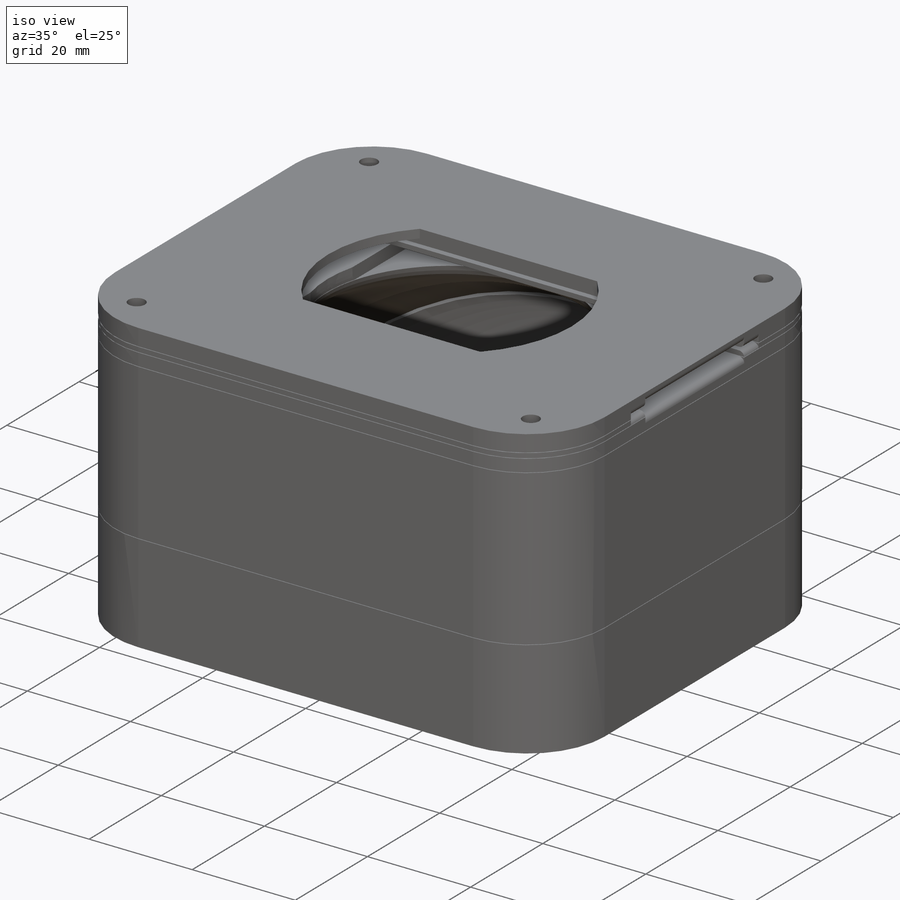
[diagram: iso view]
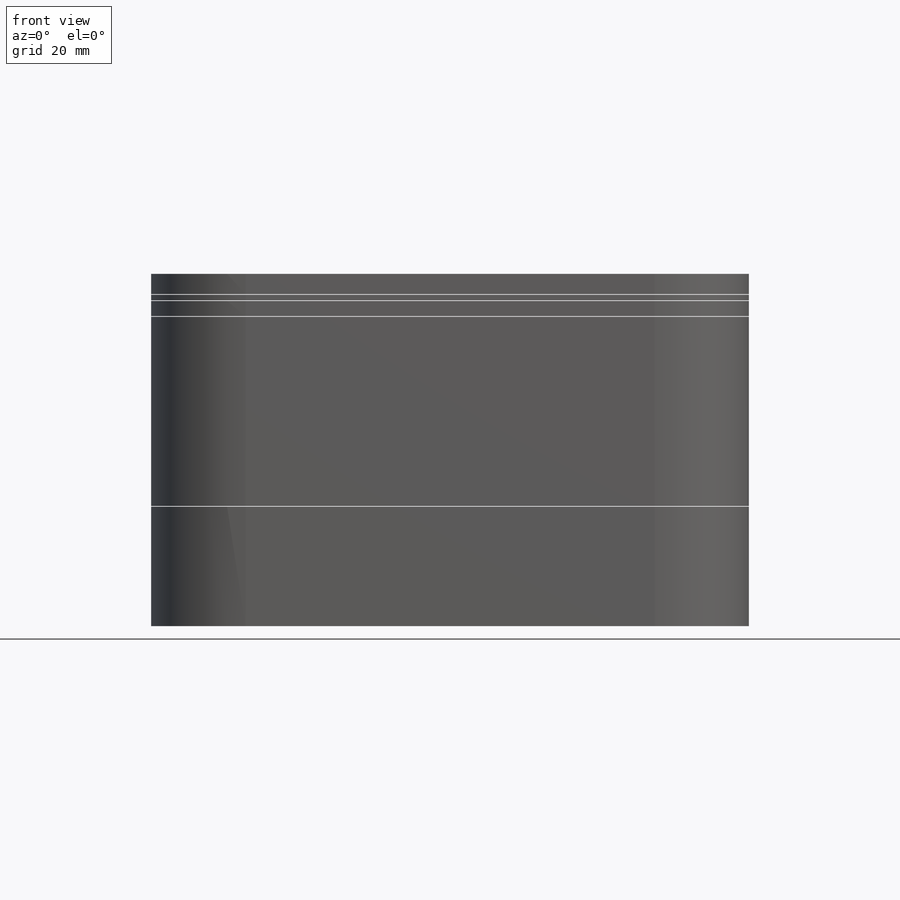
[diagram: front view]
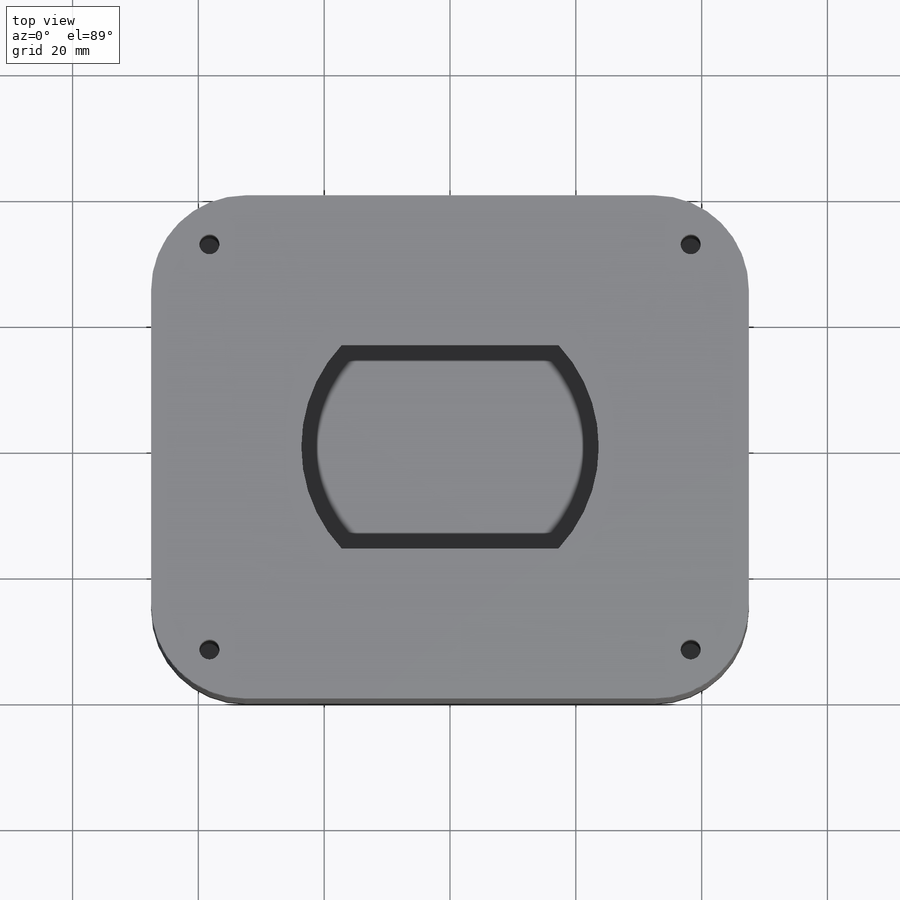
[diagram: top view]
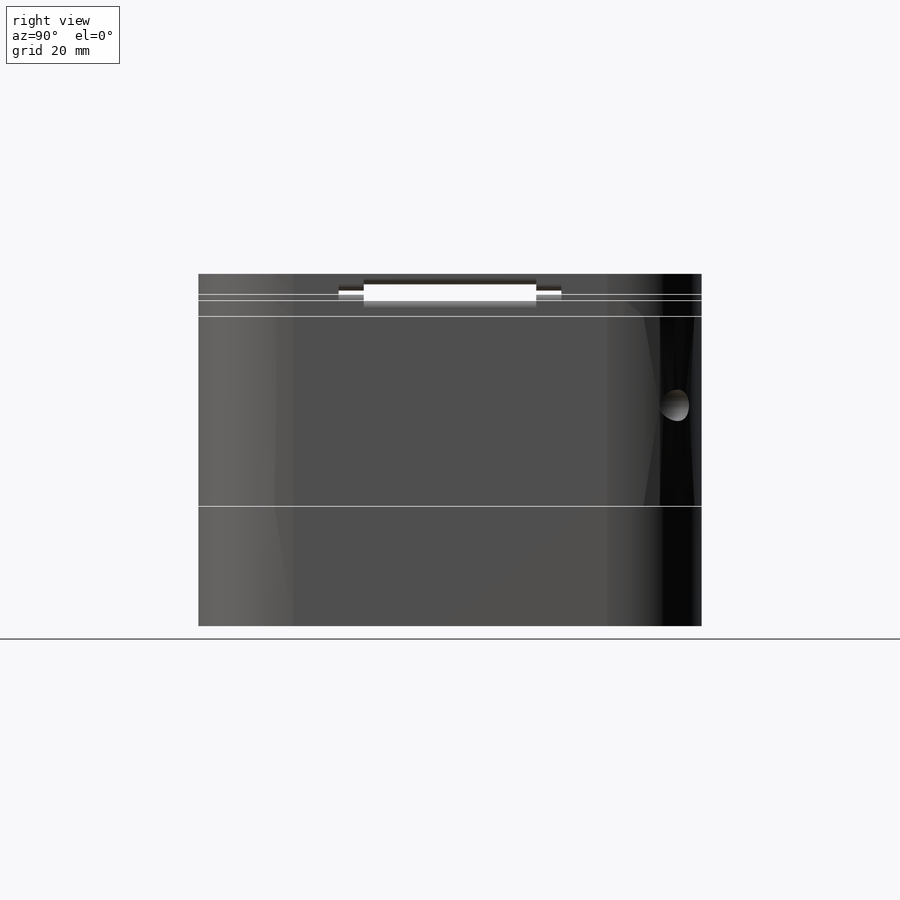
[diagram: right view]
SOLIDWORKS PART (.sldprt)
format: sldprt  version: not decoded by parser v0  size: 1,559,040 bytes
history: native  units: mm
features: sketch x27, extrude x12, cut_extrude x8, fillet x7, plane x4, mirror x3, material x1, revolve x1, sweep x1 (+10 scaffold rows collapsed; 2 parser-record rows omitted)
feature tree (76):
  scaffold x10  (default folders/planes/origin — collapsed)
  material  "PET"
  plane  "Přední rovina"
  plane  "Horní rovina"
  plane  "Pravá rovina"
  sketch  "Film plane"  dims[D1=24.0mm D2=36.0mm]
  sketch  "reflector-layout"  dims[c1.D1=10.0mm c1.D2=1.0mm c1.D3=60.0mm c1.D4=~55.113823mm c2.D4=45.0deg c2.D5=~55.113823mm c3.D5=45.0deg c3.D4=60.0mm c4.D4=~67.738632deg c4.D1=60.0mm c4.D2=10.0mm c4.D3=3.0mm c5.D4=4.0mm c5.D5=15.0mm c5.D1=10.0mm c5.D2=~9.659619mm c6.D2=45.0deg c6.D3=~89.072055mm c7.D3=30.0deg c7.D4=5.0mm c7.D2=~103.947125mm c8.D2=30.0deg c9.D2=~87.618072mm c10.D2=~10.880664deg c10.D3=20.0mm c10.D5=58.0mm c10.D6=40.0mm c10.D1=10.0mm c11.D3=10.0mm c11.D4=20.0mm c11.D5=50.0mm c11.D6=7.0mm c11.D7=36.0mm c11.D8=~33.688907mm c12.D7=36.0mm c12.D9=150.0mm c12.D10=~51.930069mm c12.D8=~75.816743mm c13.D10=~37.385259mm c14.D10=~53.948084deg c14.D11=~30.838812mm c14.D8=100.0mm]
  sketch  "Skica1"  dims[c1.D1=11.0mm c1.D2=0.5mm c1.D3=50.0mm c1.D4=30.0mm c2.D3=30.0mm c2.D2=0.5mm c2.D5=2.0mm]
  revolve  "Rotovat1"  Angle=180deg
  sketch  "Skica2"  dims[D1=3.0mm D2=40.0mm D3=5.0mm]
  extrude  "Přidat vysunutím1"  Depth=95mm
  sketch  "Skica4"
  extrude  "Přidat vysunutím3"  [1 undecoded]
  sketch  "Skica5"  dims[D1=~105.526264mm]
  sketch  "Skica14"
  cut_extrude  "Odebrat vysunutím4"  [1 undecoded]
  sketch  "Skica16"  dims[c1.D1=~52.488537mm c2.D1=1.0mm]
  extrude  "Přidat vysunutím7"  Depth=2mm
  sketch  "Skica15"
  cut_extrude  "Odebrat vysunutím5"  [1 undecoded]
  fillet  "Zaoblit4"  Radius=25mm
  fillet  "Zaoblit5"  Radius=15mm
  sketch  "Film thickness"  dims[D1=35.0mm D2=0.25mm]
  fillet  "Zaoblit7"  Radius=10mm
  sketch  "Skica12"  dims[c1.D2=1.5mm c1.D3=41.0mm c1.D4=4.3mm c1.D5=10.0mm c1.D6=1.0mm c1.D7=3.675mm c2.D5=2.5mm c2.D7=8.0mm c2.D8=2.0mm c2.D9=37.0mm c2.D1=0.2mm]
  extrude  "Přidat vysunutím4"  Depth=46mm
  sketch  "Skica17"
  extrude  "Přidat vysunutím8"  [1 undecoded]
  sketch  "Skica19"  dims[c1.D1=2.0mm c1.D2=~20.286951mm c2.D2=20.0deg c2.D1=4.0mm]
  extrude  "Přidat vysunutím10"  [1 undecoded]
  sketch  "Skica20"
  extrude  "Přidat vysunutím11"  [1 undecoded]
  sketch  "Skica21"
  extrude  "Přidat vysunutím12"  [1 undecoded]
  sketch  "Skica22"
  extrude  "Přidat vysunutím13"  [1 undecoded]
  sketch  "Skica23"  dims[D2=~23.633308mm D1=2.0mm]
  extrude  "Přidat vysunutím14"  Depth=1mm
  sketch  "Skica25"  dims[D1=3.0mm]
  cut_extrude  "Odebrat vysunutím7"  [1 undecoded]
  fillet  "Zaoblit9"  Radius=5mm
  mirror  "Zrcadlit1"
  fillet  "Zaoblit10"  Radius=15mm
  parser-record x2  (decoder bookkeeping rows leaked as tree rows — omitted from the tree; the rows remain in map.json)
  sketch  "Skica27"  dims[D1=100.0mm D2=7.0mm]
  extrude  "Přidat vysunutím15"  [1 undecoded]
  fillet  "Zaoblit11"  Radius=5mm
  sketch  "Skica28"  dims[D1=3.2mm]
  cut_extrude  "Odebrat vysunutím10"  Depth=45mm
  sketch  "Skica29"  dims[D1=5.5mm D2=15.0mm]
  cut_extrude  "Odebrat vysunutím11"  Depth=4mm
  mirror  "Zrcadlit4"
  mirror  "Zrcadlit3"
  fillet  "Zaoblit12"  Radius=1mm
  sketch  "Skica26"  dims[D1=19.0mm D2=0.1mm]
  cut_extrude  "Odebrat vysunutím8"  [1 undecoded]
  sketch  "Skica33"  dims[D1=5.0mm D2=5.0mm D3=16.0mm]
  plane  "Rovina1"
  sketch  "Skica34"  dims[D1=9.0mm]
  sweep  "Odebrat tažením po křivce2"
  sketch  "Skica38"  dims[D1=4.0mm]
  cut_extrude  "Odebrat vysunutím22"  [1 undecoded]
  sketch  "Skica39"  dims[D1=4.0mm]
  cut_extrude  "Odebrat vysunutím23"  [1 undecoded]
  sketch  "Skica40"
  extrude  "Přidat vysunutím16"  Depth=0.15mm
decode coverage: 34 of 59 modeling features carry decoded parameters
note: ~ marks probable driven/reference dimensions
note: 13 parameter values undecoded
summary: no parameter record found for 13 features
note: suppression state not decoded; provenance and decode notes live in map.json
